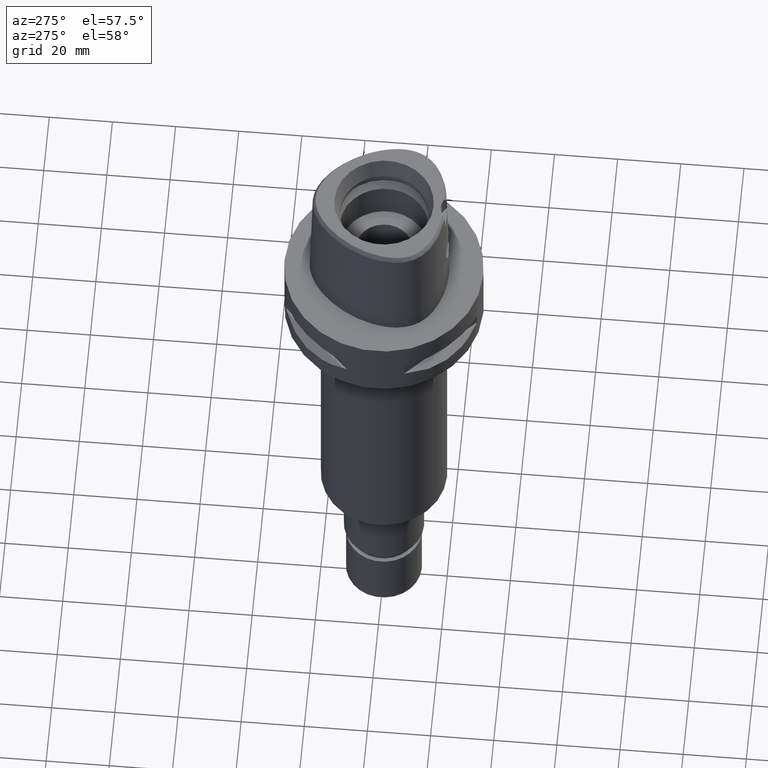
[diagram: clean part render]
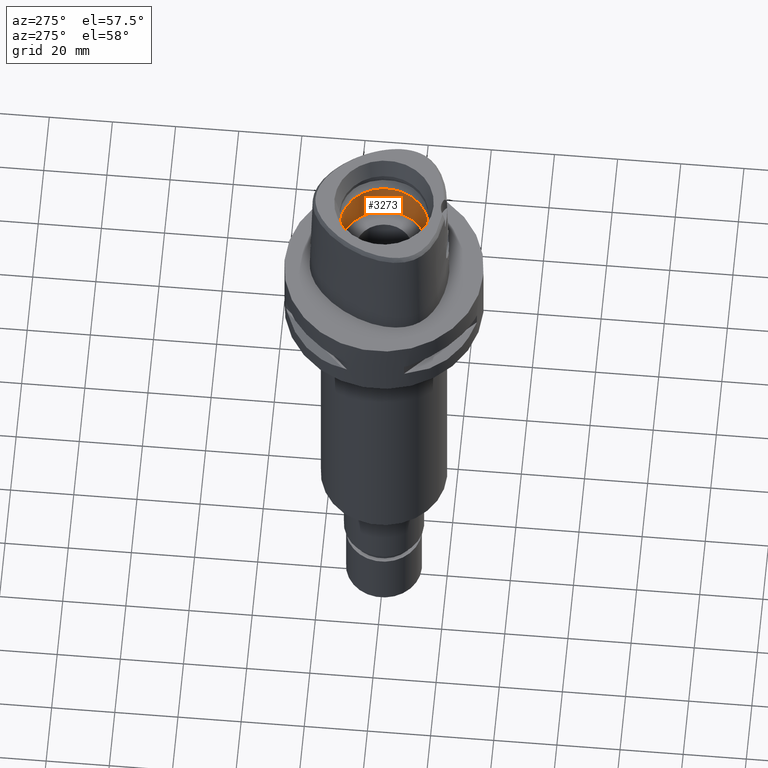
[diagram: same view with one face highlighted and labeled with its STEP entity id]
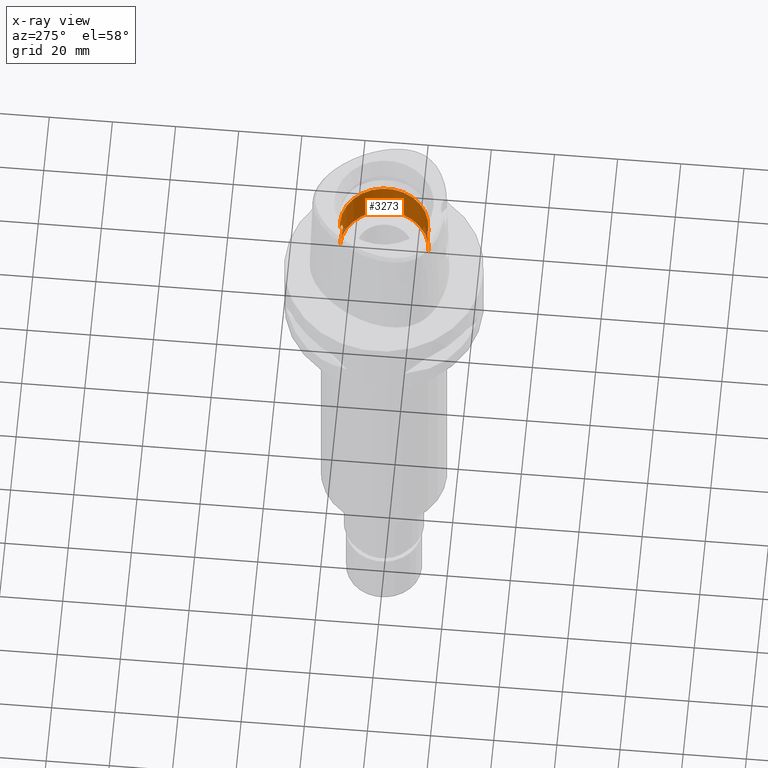
[diagram: x-ray of the same camera — body ghosted, the highlighted face saturated]
A machine part, auxiliary view. The second image highlights one B-rep face of the part: STEP entity #3273.
The next image is the same camera in x-ray: the body ghosted, the highlighted face saturated — about 3% of this face is hidden behind the body in this view.
In plain terms, the highlighted cylindrical surface (partial cylindrical patch) has radius 14 mm, axis along (0, 0, -1).
Its self-contained STEP definition (entity closure, byte-faithful):
#1204=DIRECTION('',(0.E0,0.E0,1.E0));
#1205=VECTOR('',#1204,4.65E0);
#1206=CARTESIAN_POINT('',(0.E0,-1.4E1,1.955E1));
#1207=LINE('',#1206,#1205);
#1229=DIRECTION('',(0.E0,0.E0,1.E0));
#1230=VECTOR('',#1229,4.5E-1);
#1231=CARTESIAN_POINT('',(0.E0,-1.4E1,1.1E1));
#1232=LINE('',#1231,#1230);
#1236=CARTESIAN_POINT('',(0.E0,1.4E1,1.145E1));
#1237=CARTESIAN_POINT('',(3.890656587082E-1,1.4E1,1.145E1));
#1238=CARTESIAN_POINT('',(1.137946480515E0,1.396814283548E1,1.155828664895E1));
#1239=CARTESIAN_POINT('',(2.197884870099E0,1.383870174341E1,1.203149619596E1));
#1240=CARTESIAN_POINT('',(3.097972623720E0,1.366069510254E1,1.280294837081E1));
#1241=CARTESIAN_POINT('',(3.738673703503E0,1.349453845455E1,1.380184726516E1));
#1242=CARTESIAN_POINT('',(4.064074976212E0,1.339725232429E1,1.492292516969E1));
#1243=CARTESIAN_POINT('',(4.062411444500E0,1.339776824410E1,1.608132117720E1));
#1244=CARTESIAN_POINT('',(3.742497280990E0,1.349333952951E1,1.718511864324E1));
#1245=CARTESIAN_POINT('',(3.116005798843E0,1.365632636463E1,1.817508396476E1));
#1246=CARTESIAN_POINT('',(2.219816746592E0,1.383542810505E1,1.895625971653E1));
#1247=CARTESIAN_POINT('',(1.143438446172E0,1.396806433675E1,1.944157426444E1));
#1248=CARTESIAN_POINT('',(3.908155805123E-1,1.4E1,1.955E1));
#1249=CARTESIAN_POINT('',(0.E0,1.4E1,1.955E1));
#1254=DIRECTION('',(0.E0,0.E0,1.E0));
#1255=VECTOR('',#1254,4.65E0);
#1256=CARTESIAN_POINT('',(0.E0,1.4E1,1.955E1));
#1257=LINE('',#1256,#1255);
#1261=CARTESIAN_POINT('',(0.E0,-1.4E1,1.955E1));
#1262=CARTESIAN_POINT('',(3.890470746313E-1,-1.4E1,1.955E1));
#1263=CARTESIAN_POINT('',(1.137908119307E0,-1.396814662394E1,1.944172579872E1));
#1264=CARTESIAN_POINT('',(2.197907723162E0,-1.383869973666E1,1.896849988083E1));
#1265=CARTESIAN_POINT('',(3.098027438217E0,-1.366068240738E1,1.819698776660E1));
#1266=CARTESIAN_POINT('',(3.738691591910E0,-1.349453311003E1,1.719811198633E1));
#1267=CARTESIAN_POINT('',(4.064092018577E0,-1.339724725713E1,1.607698753627E1));
#1268=CARTESIAN_POINT('',(4.062390253104E0,-1.339777446742E1,1.491862211780E1));
#1269=CARTESIAN_POINT('',(3.742530823379E0,-1.349332992017E1,1.381496471140E1));
#1270=CARTESIAN_POINT('',(3.116021776767E0,-1.365632332913E1,1.282492274373E1));
#1271=CARTESIAN_POINT('',(2.219819647822E0,-1.383542729268E1,1.204374600910E1));
#1272=CARTESIAN_POINT('',(1.143466453178E0,-1.396806181833E1,1.155843375228E1));
#1273=CARTESIAN_POINT('',(3.908272212610E-1,-1.4E1,1.145E1));
#1274=CARTESIAN_POINT('',(0.E0,-1.4E1,1.145E1));
#1279=DIRECTION('',(0.E0,0.E0,1.E0));
#1280=VECTOR('',#1279,4.5E-1);
#1281=CARTESIAN_POINT('',(0.E0,1.4E1,1.1E1));
#1282=LINE('',#1281,#1280);
#1316=CARTESIAN_POINT('',(0.E0,0.E0,2.42E1));
#1317=DIRECTION('',(0.E0,0.E0,1.E0));
#1318=DIRECTION('',(0.E0,-1.E0,0.E0));
#1319=AXIS2_PLACEMENT_3D('',#1316,#1317,#1318);
#1468=CARTESIAN_POINT('',(0.E0,0.E0,1.1E1));
#1469=DIRECTION('',(0.E0,0.E0,-1.E0));
#1470=DIRECTION('',(0.E0,1.E0,0.E0));
#1471=AXIS2_PLACEMENT_3D('',#1468,#1469,#1470);
#1709=CARTESIAN_POINT('',(0.E0,-1.4E1,1.145E1));
#1710=VERTEX_POINT('',#1709);
#1711=VERTEX_POINT('',#1261);
#1713=CARTESIAN_POINT('',(0.E0,1.4E1,1.145E1));
#1715=VERTEX_POINT('',#1713);
#1718=CARTESIAN_POINT('',(0.E0,1.4E1,1.955E1));
#1719=VERTEX_POINT('',#1718);
#1720=CARTESIAN_POINT('',(0.E0,-1.4E1,2.42E1));
#1721=VERTEX_POINT('',#1720);
#1722=CARTESIAN_POINT('',(0.E0,1.4E1,2.42E1));
#1723=VERTEX_POINT('',#1722);
#1724=CARTESIAN_POINT('',(0.E0,1.4E1,1.1E1));
#1725=VERTEX_POINT('',#1724);
#1726=CARTESIAN_POINT('',(0.E0,-1.4E1,1.1E1));
#1727=VERTEX_POINT('',#1726);
#3255=CARTESIAN_POINT('',(0.E0,0.E0,3.99E1));
#3256=DIRECTION('',(0.E0,0.E0,-1.E0));
#3257=DIRECTION('',(0.E0,-1.E0,0.E0));
#3258=AXIS2_PLACEMENT_3D('',#3255,#3256,#3257);
#3259=CYLINDRICAL_SURFACE('',#3258,1.4E1);
#3261=ORIENTED_EDGE('',*,*,#3260,.T.);
#3262=ORIENTED_EDGE('',*,*,#3242,.T.);
#3264=ORIENTED_EDGE('',*,*,#3263,.F.);
#3265=ORIENTED_EDGE('',*,*,#3238,.F.);
#3266=ORIENTED_EDGE('',*,*,#3212,.T.);
#3267=ORIENTED_EDGE('',*,*,#3250,.F.);
#3269=ORIENTED_EDGE('',*,*,#3268,.F.);
#3270=ORIENTED_EDGE('',*,*,#3246,.T.);
#3271=EDGE_LOOP('',(#3261,#3262,#3264,#3265,#3266,#3267,#3269,#3270));
#3272=FACE_OUTER_BOUND('',#3271,.F.);
#1250=B_SPLINE_CURVE_WITH_KNOTS('',3,(#1236,#1237,#1238,#1239,#1240,#1241,#1242,
#1243,#1244,#1245,#1246,#1247,#1248,#1249),.UNSPECIFIED.,.F.,.F.,(4,1,1,1,1,1,1,
1,1,1,1,4),(0.E0,9.090909090909E-2,1.818181818182E-1,2.727272727273E-1,
3.636363636364E-1,4.545454545455E-1,5.454545454545E-1,6.363636363636E-1,
7.272727272727E-1,8.181818181818E-1,9.090909090909E-1,1.E0),.UNSPECIFIED.);
#1275=B_SPLINE_CURVE_WITH_KNOTS('',3,(#1261,#1262,#1263,#1264,#1265,#1266,#1267,
#1268,#1269,#1270,#1271,#1272,#1273,#1274),.UNSPECIFIED.,.F.,.F.,(4,1,1,1,1,1,1,
1,1,1,1,4),(0.E0,9.090909090909E-2,1.818181818182E-1,2.727272727273E-1,
3.636363636364E-1,4.545454545455E-1,5.454545454545E-1,6.363636363636E-1,
7.272727272727E-1,8.181818181818E-1,9.090909090909E-1,1.E0),.UNSPECIFIED.);
#1320=CIRCLE('',#1319,1.4E1);
#1472=CIRCLE('',#1471,1.4E1);
#3212=EDGE_CURVE('',#1711,#1710,#1275,.T.);
#3238=EDGE_CURVE('',#1711,#1721,#1207,.T.);
#3242=EDGE_CURVE('',#1719,#1723,#1257,.T.);
#3246=EDGE_CURVE('',#1725,#1715,#1282,.T.);
#3250=EDGE_CURVE('',#1727,#1710,#1232,.T.);
#3260=EDGE_CURVE('',#1715,#1719,#1250,.T.);
#3263=EDGE_CURVE('',#1721,#1723,#1320,.T.);
#3268=EDGE_CURVE('',#1725,#1727,#1472,.T.);
#3273=ADVANCED_FACE('',(#3272),#3259,.F.);